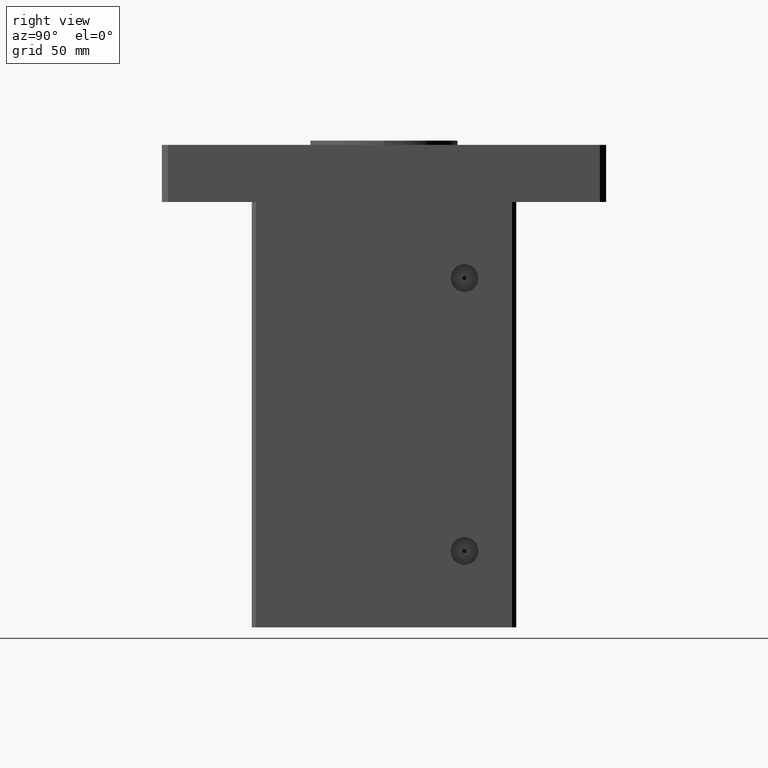
[diagram: clean part render]
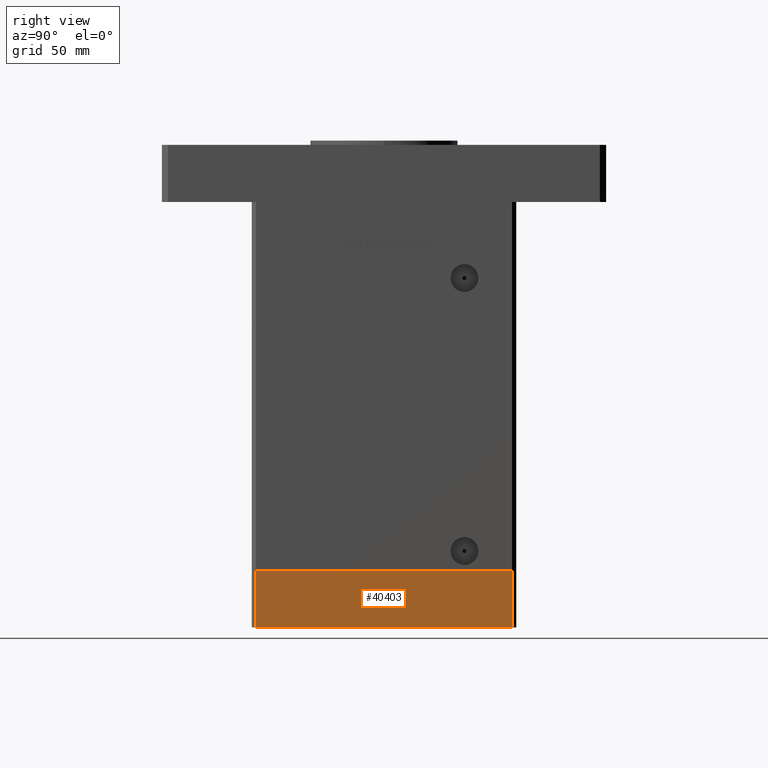
[diagram: same view with one face highlighted and labeled with its STEP entity id]
A machine part, right view. The second image highlights one B-rep face of the part: STEP entity #40403.
In plain terms, the highlighted planar face has unit normal (1, 0, 0).
Its self-contained STEP definition (entity closure, byte-faithful):
#1014 = DIRECTION ( 'NONE',  ( 0.000000000000000000, 0.000000000000000000, 1.000000000000000000 ) ) ;
#2769 = VECTOR ( 'NONE', #26305, 1000.000000000000000 ) ;
#3783 = VERTEX_POINT ( 'NONE', #48550 ) ;
#4861 = EDGE_CURVE ( 'NONE', #3783, #32622, #46617, .T. ) ;
#5133 = VECTOR ( 'NONE', #46360, 1000.000000000000000 ) ;
#6528 = DIRECTION ( 'NONE',  ( -1.000000000000000000, 0.000000000000000000, 0.000000000000000000 ) ) ;
#8940 = VERTEX_POINT ( 'NONE', #23456 ) ;
#12409 = CARTESIAN_POINT ( 'NONE',  ( -75.00000000000001421, -60.50000000000001421, -27.00000000000000000 ) ) ;
#12815 = AXIS2_PLACEMENT_3D ( 'NONE', #47995, #6528, #48521 ) ;
#13613 = DIRECTION ( 'NONE',  ( 0.000000000000000000, -1.000000000000000000, 0.000000000000000000 ) ) ;
#14133 = ORIENTED_EDGE ( 'NONE', *, *, #4861, .T. ) ;
#15619 = VECTOR ( 'NONE', #1014, 1000.000000000000000 ) ;
#20096 = CARTESIAN_POINT ( 'NONE',  ( -75.00000000000001421, 60.49999999999997158, -27.00000000000000000 ) ) ;
#20220 = ORIENTED_EDGE ( 'NONE', *, *, #43029, .F. ) ;
#23456 = CARTESIAN_POINT ( 'NONE',  ( -75.00000000000001421, -60.50000000000001421, 0.000000000000000000 ) ) ;
#26305 = DIRECTION ( 'NONE',  ( 0.000000000000000000, -1.000000000000000000, 0.000000000000000000 ) ) ;
#27131 = FACE_OUTER_BOUND ( 'NONE', #46523, .T. ) ;
#27393 = VECTOR ( 'NONE', #13613, 1000.000000000000000 ) ;
#28254 = LINE ( 'NONE', #20096, #5133 ) ;
#30505 = EDGE_CURVE ( 'NONE', #35186, #8940, #38810, .T. ) ;
#32622 = VERTEX_POINT ( 'NONE', #46462 ) ;
#33818 = LINE ( 'NONE', #12409, #15619 ) ;
#34551 = ORIENTED_EDGE ( 'NONE', *, *, #53563, .T. ) ;
#35186 = VERTEX_POINT ( 'NONE', #43286 ) ;
#38810 = LINE ( 'NONE', #50763, #27393 ) ;
#39577 = PLANE ( 'NONE',  #12815 ) ;
#40403 = ADVANCED_FACE ( 'NONE', ( #27131 ), #39577, .T. ) ;
#43029 = EDGE_CURVE ( 'NONE', #3783, #35186, #28254, .T. ) ;
#43286 = CARTESIAN_POINT ( 'NONE',  ( -75.00000000000001421, 60.49999999999997158, 0.000000000000000000 ) ) ;
#46360 = DIRECTION ( 'NONE',  ( 0.000000000000000000, 0.000000000000000000, 1.000000000000000000 ) ) ;
#46462 = CARTESIAN_POINT ( 'NONE',  ( -75.00000000000001421, -60.50000000000001421, -27.00000000000000000 ) ) ;
#46523 = EDGE_LOOP ( 'NONE', ( #50296, #20220, #14133, #34551 ) ) ;
#46617 = LINE ( 'NONE', #46885, #2769 ) ;
#46885 = CARTESIAN_POINT ( 'NONE',  ( -75.00000000000001421, 60.49999999999997158, -27.00000000000000000 ) ) ;
#47995 = CARTESIAN_POINT ( 'NONE',  ( -75.00000000000001421, 60.49999999999997158, -27.00000000000000000 ) ) ;
#48521 = DIRECTION ( 'NONE',  ( 0.000000000000000000, 0.000000000000000000, 1.000000000000000000 ) ) ;
#48550 = CARTESIAN_POINT ( 'NONE',  ( -75.00000000000001421, 60.49999999999997158, -27.00000000000000000 ) ) ;
#50296 = ORIENTED_EDGE ( 'NONE', *, *, #30505, .F. ) ;
#50763 = CARTESIAN_POINT ( 'NONE',  ( -75.00000000000001421, 60.49999999999997158, 0.000000000000000000 ) ) ;
#53563 = EDGE_CURVE ( 'NONE', #32622, #8940, #33818, .T. ) ;